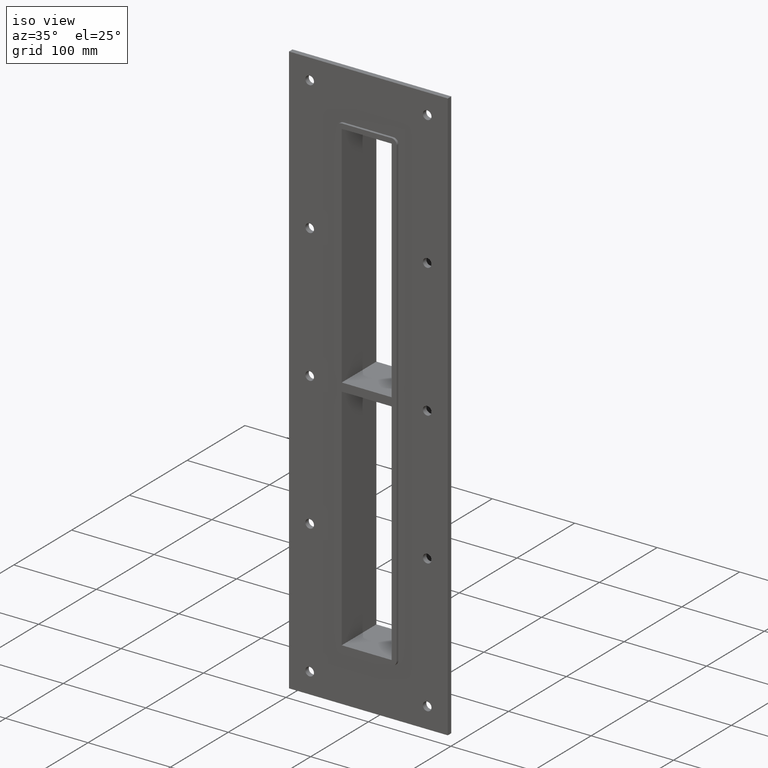
[diagram: clean part render]
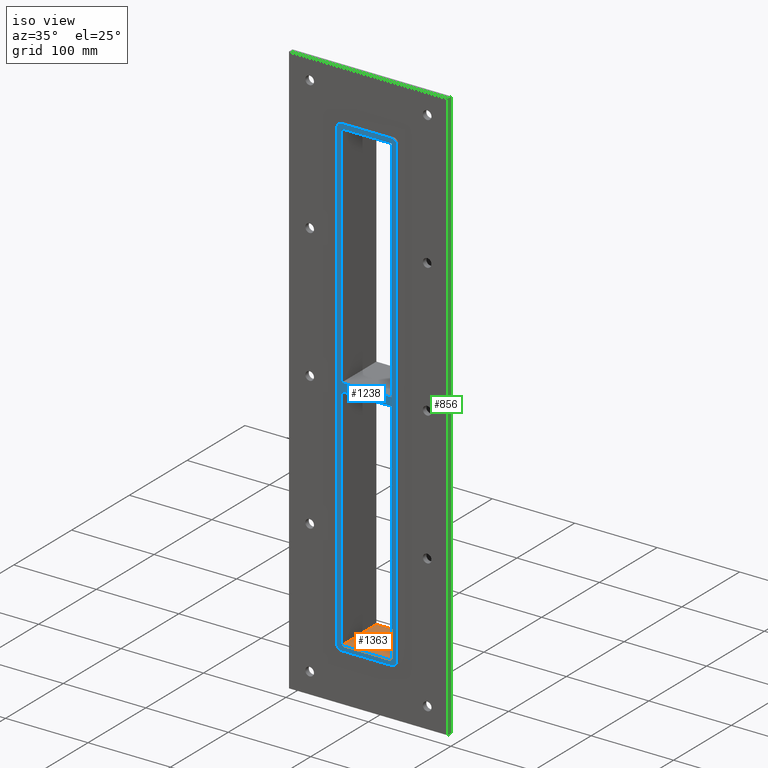
[diagram: same view with three faces highlighted in distinct colors, each labeled with its STEP entity id]
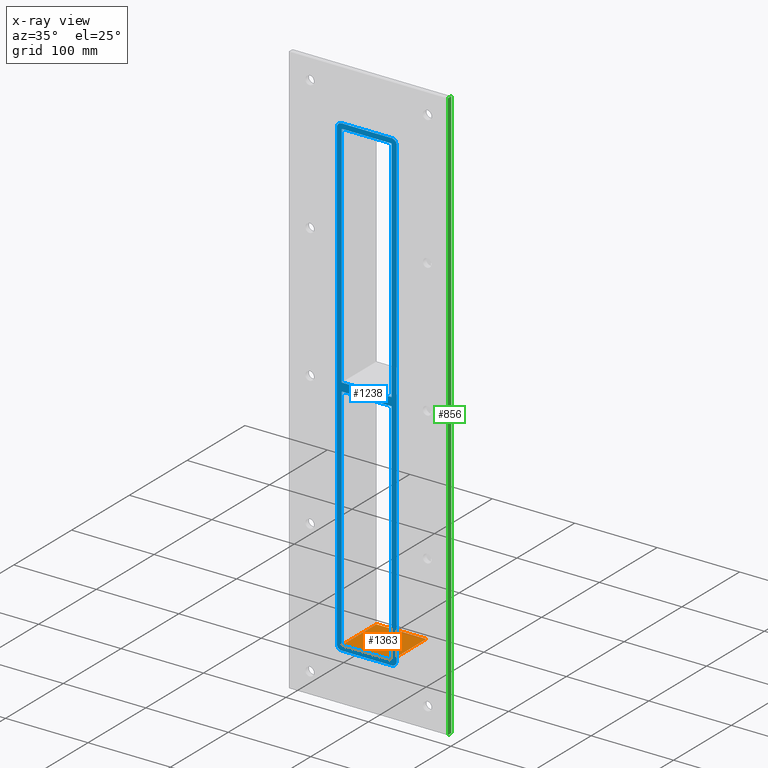
[diagram: x-ray of the same camera — body ghosted, the three highlighted faces saturated]
A machine part, iso view with three faces highlighted in distinct colors.
The next image is the same camera in x-ray (body ghosted, the three faces saturated) — at least one of them is partly hidden behind the body in this view.
Their STEP definitions:

[orange] entity #1363 — the highlighted planar face has unit normal (0, 0, -1).
#465=CARTESIAN_POINT('',(30.249999999999986,57.0,-283.0));
#466=VERTEX_POINT('',#465);
#473=CARTESIAN_POINT('',(30.249999999999986,-3.0,-283.0));
#474=VERTEX_POINT('',#473);
#475=CARTESIAN_POINT('',(30.249999999999986,56.999999999999993,-283.0));
#476=DIRECTION('',(0.0,-1.0,0.0));
#477=VECTOR('',#476,59.999999999999993);
#478=LINE('',#475,#477);
#479=EDGE_CURVE('',#466,#474,#478,.T.);
#875=CARTESIAN_POINT('',(-30.249999999999986,-3.0,-283.0));
#876=VERTEX_POINT('',#875);
#883=CARTESIAN_POINT('',(-30.249999999999986,57.0,-283.0));
#884=VERTEX_POINT('',#883);
#885=CARTESIAN_POINT('',(-30.249999999999986,-3.0,-283.0));
#886=DIRECTION('',(0.0,1.0,0.0));
#887=VECTOR('',#886,60.0);
#888=LINE('',#885,#887);
#889=EDGE_CURVE('',#876,#884,#888,.T.);
#1229=CARTESIAN_POINT('',(30.249999999999986,-3.0,-283.0));
#1230=DIRECTION('',(-1.0,0.0,0.0));
#1231=VECTOR('',#1230,60.499999999999972);
#1232=LINE('',#1229,#1231);
#1233=EDGE_CURVE('',#474,#876,#1232,.T.);
#1347=CARTESIAN_POINT('',(30.249999999999986,0.0,-283.0));
#1348=DIRECTION('',(0.0,0.0,-1.0));
#1349=DIRECTION('',(-1.0,0.0,0.0));
#1350=AXIS2_PLACEMENT_3D('',#1347,#1348,#1349);
#1351=PLANE('',#1350);
#1352=ORIENTED_EDGE('',*,*,#889,.F.);
#1353=ORIENTED_EDGE('',*,*,#1233,.F.);
#1354=ORIENTED_EDGE('',*,*,#479,.F.);
#1355=CARTESIAN_POINT('',(-30.249999999999986,57.0,-283.0));
#1356=DIRECTION('',(1.0,0.0,0.0));
#1357=VECTOR('',#1356,60.499999999999972);
#1358=LINE('',#1355,#1357);
#1359=EDGE_CURVE('',#884,#466,#1358,.T.);
#1360=ORIENTED_EDGE('',*,*,#1359,.F.);
#1361=EDGE_LOOP('',(#1352,#1353,#1354,#1360));
#1362=FACE_OUTER_BOUND('',#1361,.T.);
#1363=ADVANCED_FACE('',(#1362),#1351,.F.);

[blue] entity #1238 — the highlighted planar face has unit normal (0, 1, 0).
#353=CARTESIAN_POINT('',(30.249999999996362,-3.0,-5.000000000010795));
#354=VERTEX_POINT('',#353);
#355=CARTESIAN_POINT('',(-30.249999999997087,-3.0,-5.000000000011369));
#356=VERTEX_POINT('',#355);
#357=CARTESIAN_POINT('',(30.249999999996362,-3.0,-5.000000000010795));
#358=DIRECTION('',(-1.0,0.0,0.0));
#359=VECTOR('',#358,60.499999999993449);
#360=LINE('',#357,#359);
#361=EDGE_CURVE('',#354,#356,#360,.T.);
#393=CARTESIAN_POINT('',(-30.24999999999709,-3.0,5.0));
#394=VERTEX_POINT('',#393);
#395=CARTESIAN_POINT('',(30.249999999999019,-3.0,5.0));
#396=VERTEX_POINT('',#395);
#397=CARTESIAN_POINT('',(-30.24999999999709,-3.0,5.0));
#398=DIRECTION('',(1.0,0.0,0.0));
#399=VECTOR('',#398,60.499999999996106);
#400=LINE('',#397,#399);
#401=EDGE_CURVE('',#394,#396,#400,.T.);
#442=CARTESIAN_POINT('',(-30.249999999999986,-3.0,283.0));
#443=VERTEX_POINT('',#442);
#450=CARTESIAN_POINT('',(-30.249999999999986,-3.0,5.0));
#451=DIRECTION('',(0.0,0.0,1.0));
#452=VECTOR('',#451,277.99999999999994);
#453=LINE('',#450,#452);
#454=EDGE_CURVE('',#394,#443,#453,.T.);
#473=CARTESIAN_POINT('',(30.249999999999986,-3.0,-283.0));
#474=VERTEX_POINT('',#473);
#481=CARTESIAN_POINT('',(30.249999999999986,-3.0,-5.0000000000108));
#482=DIRECTION('',(0.0,0.0,-1.0));
#483=VECTOR('',#482,277.9999999999892);
#484=LINE('',#481,#483);
#485=EDGE_CURVE('',#354,#474,#484,.T.);
#496=CARTESIAN_POINT('',(30.249999999999986,-3.0,283.0));
#497=VERTEX_POINT('',#496);
#498=CARTESIAN_POINT('',(30.249999999999986,-3.0,283.0));
#499=DIRECTION('',(0.0,0.0,-1.0));
#500=VECTOR('',#499,278.0);
#501=LINE('',#498,#500);
#502=EDGE_CURVE('',#497,#396,#501,.T.);
#875=CARTESIAN_POINT('',(-30.249999999999986,-3.0,-283.0));
#876=VERTEX_POINT('',#875);
#877=CARTESIAN_POINT('',(-30.249999999999986,-3.0,-283.0));
#878=DIRECTION('',(0.0,0.0,1.0));
#879=VECTOR('',#878,277.99999999998863);
#880=LINE('',#877,#879);
#881=EDGE_CURVE('',#876,#356,#880,.T.);
#906=CARTESIAN_POINT('',(36.25,-3.0,-283.0));
#907=VERTEX_POINT('',#906);
#914=CARTESIAN_POINT('',(30.250000000000004,-3.0,-289.0));
#915=VERTEX_POINT('',#914);
#916=CARTESIAN_POINT('',(30.250000000000004,-3.0,-283.0));
#917=DIRECTION('',(0.0,1.0,0.0));
#918=DIRECTION('',(0.707106781186546,0.0,-0.707106781186549));
#919=AXIS2_PLACEMENT_3D('',#916,#917,#918);
#920=CIRCLE('',#919,6.000000000000001);
#921=EDGE_CURVE('',#907,#915,#920,.T.);
#971=CARTESIAN_POINT('',(-30.250000000000004,-3.0,-289.0));
#972=VERTEX_POINT('',#971);
#973=CARTESIAN_POINT('',(-30.25,-3.0,-289.0));
#974=DIRECTION('',(1.0,0.0,0.0));
#975=VECTOR('',#974,60.5);
#976=LINE('',#973,#975);
#977=EDGE_CURVE('',#972,#915,#976,.T.);
#1018=CARTESIAN_POINT('',(36.25,-3.0,283.0));
#1019=VERTEX_POINT('',#1018);
#1026=CARTESIAN_POINT('',(36.25,-3.0,-283.00000000000006));
#1027=DIRECTION('',(0.0,0.0,1.0));
#1028=VECTOR('',#1027,566.0);
#1029=LINE('',#1026,#1028);
#1030=EDGE_CURVE('',#907,#1019,#1029,.T.);
#1043=CARTESIAN_POINT('',(-36.25,-3.0,-283.00000000000006));
#1044=VERTEX_POINT('',#1043);
#1045=CARTESIAN_POINT('',(-30.250000000000004,-3.0,-283.00000000000006));
#1046=DIRECTION('',(0.0,1.0,0.0));
#1047=DIRECTION('',(-0.707106781186551,0.0,-0.707106781186544));
#1048=AXIS2_PLACEMENT_3D('',#1045,#1046,#1047);
#1049=CIRCLE('',#1048,6.0);
#1050=EDGE_CURVE('',#972,#1044,#1049,.T.);
#1092=CARTESIAN_POINT('',(30.250000000000004,-3.0,289.0));
#1093=VERTEX_POINT('',#1092);
#1100=CARTESIAN_POINT('',(30.250000000000004,-3.0,283.0));
#1101=DIRECTION('',(0.0,1.0,0.0));
#1102=DIRECTION('',(0.707106781186546,0.0,0.707106781186549));
#1103=AXIS2_PLACEMENT_3D('',#1100,#1101,#1102);
#1104=CIRCLE('',#1103,6.000000000000001);
#1105=EDGE_CURVE('',#1093,#1019,#1104,.T.);
#1118=CARTESIAN_POINT('',(-36.25,-3.0,283.0));
#1119=VERTEX_POINT('',#1118);
#1120=CARTESIAN_POINT('',(-36.25,-3.0,283.0));
#1121=DIRECTION('',(0.0,0.0,-1.0));
#1122=VECTOR('',#1121,566.0);
#1123=LINE('',#1120,#1122);
#1124=EDGE_CURVE('',#1119,#1044,#1123,.T.);
#1165=CARTESIAN_POINT('',(-30.250000000000004,-3.0,289.0));
#1166=VERTEX_POINT('',#1165);
#1173=CARTESIAN_POINT('',(30.25,-3.0,289.0));
#1174=DIRECTION('',(-1.0,0.0,0.0));
#1175=VECTOR('',#1174,60.5);
#1176=LINE('',#1173,#1175);
#1177=EDGE_CURVE('',#1093,#1166,#1176,.T.);
#1190=CARTESIAN_POINT('',(-30.250000000000004,-3.0,283.0));
#1191=DIRECTION('',(0.0,1.0,0.0));
#1192=DIRECTION('',(-0.707106781186546,0.0,0.707106781186549));
#1193=AXIS2_PLACEMENT_3D('',#1190,#1191,#1192);
#1194=CIRCLE('',#1193,6.000000000000001);
#1195=EDGE_CURVE('',#1119,#1166,#1194,.T.);
#1201=CARTESIAN_POINT('',(0.0,-3.0,-1.966144E-014));
#1202=DIRECTION('',(0.0,1.0,0.0));
#1203=DIRECTION('',(0.0,0.0,1.0));
#1204=AXIS2_PLACEMENT_3D('',#1201,#1202,#1203);
#1205=PLANE('',#1204);
#1206=ORIENTED_EDGE('',*,*,#1050,.F.);
#1207=ORIENTED_EDGE('',*,*,#977,.T.);
#1208=ORIENTED_EDGE('',*,*,#921,.F.);
#1209=ORIENTED_EDGE('',*,*,#1030,.T.);
#1210=ORIENTED_EDGE('',*,*,#1105,.F.);
#1211=ORIENTED_EDGE('',*,*,#1177,.T.);
#1212=ORIENTED_EDGE('',*,*,#1195,.F.);
#1213=ORIENTED_EDGE('',*,*,#1124,.T.);
#1214=EDGE_LOOP('',(#1206,#1207,#1208,#1209,#1210,#1211,#1212,#1213));
#1215=FACE_OUTER_BOUND('',#1214,.T.);
#1216=ORIENTED_EDGE('',*,*,#454,.T.);
#1217=CARTESIAN_POINT('',(-30.249999999999986,-3.0,283.0));
#1218=DIRECTION('',(1.0,0.0,0.0));
#1219=VECTOR('',#1218,60.499999999999972);
#1220=LINE('',#1217,#1219);
#1221=EDGE_CURVE('',#443,#497,#1220,.T.);
#1222=ORIENTED_EDGE('',*,*,#1221,.T.);
#1223=ORIENTED_EDGE('',*,*,#502,.T.);
#1224=ORIENTED_EDGE('',*,*,#401,.F.);
#1225=EDGE_LOOP('',(#1216,#1222,#1223,#1224));
#1226=FACE_BOUND('',#1225,.T.);
#1227=ORIENTED_EDGE('',*,*,#361,.F.);
#1228=ORIENTED_EDGE('',*,*,#485,.T.);
#1229=CARTESIAN_POINT('',(30.249999999999986,-3.0,-283.0));
#1230=DIRECTION('',(-1.0,0.0,0.0));
#1231=VECTOR('',#1230,60.499999999999972);
#1232=LINE('',#1229,#1231);
#1233=EDGE_CURVE('',#474,#876,#1232,.T.);
#1234=ORIENTED_EDGE('',*,*,#1233,.T.);
#1235=ORIENTED_EDGE('',*,*,#881,.T.);
#1236=EDGE_LOOP('',(#1227,#1228,#1234,#1235));
#1237=FACE_BOUND('',#1236,.T.);
#1238=ADVANCED_FACE('',(#1215,#1226,#1237),#1205,.F.);

[green] entity #856 — the highlighted planar face has unit normal (1, 0, 0).
#528=CARTESIAN_POINT('',(96.25,6.000000000000001,349.0));
#529=VERTEX_POINT('',#528);
#536=CARTESIAN_POINT('',(96.25,6.000000000000001,-348.99999999999983));
#537=VERTEX_POINT('',#536);
#538=CARTESIAN_POINT('',(96.249999999999986,6.000000000000001,349.0));
#539=DIRECTION('',(0.0,0.0,-1.0));
#540=VECTOR('',#539,697.99999999999977);
#541=LINE('',#538,#540);
#542=EDGE_CURVE('',#529,#537,#541,.T.);
#668=CARTESIAN_POINT('',(96.249999999999986,0.0,349.0));
#669=VERTEX_POINT('',#668);
#684=CARTESIAN_POINT('',(96.249999999999986,0.0,-348.99999999999989));
#685=VERTEX_POINT('',#684);
#692=CARTESIAN_POINT('',(96.249999999999986,0.0,349.0));
#693=DIRECTION('',(0.0,0.0,-1.0));
#694=VECTOR('',#693,697.99999999999977);
#695=LINE('',#692,#694);
#696=EDGE_CURVE('',#669,#685,#695,.T.);
#831=CARTESIAN_POINT('',(96.249999999999986,0.0,-348.99999999999989));
#832=DIRECTION('',(0.0,1.0,0.0));
#833=VECTOR('',#832,6.000000000000001);
#834=LINE('',#831,#833);
#835=EDGE_CURVE('',#685,#537,#834,.T.);
#840=CARTESIAN_POINT('',(96.249999999999986,0.0,349.0));
#841=DIRECTION('',(1.0,0.0,0.0));
#842=DIRECTION('',(0.0,0.0,-1.0));
#843=AXIS2_PLACEMENT_3D('',#840,#841,#842);
#844=PLANE('',#843);
#845=ORIENTED_EDGE('',*,*,#696,.T.);
#846=ORIENTED_EDGE('',*,*,#835,.T.);
#847=ORIENTED_EDGE('',*,*,#542,.F.);
#848=CARTESIAN_POINT('',(96.249999999999986,0.0,349.0));
#849=DIRECTION('',(0.0,1.0,0.0));
#850=VECTOR('',#849,6.000000000000001);
#851=LINE('',#848,#850);
#852=EDGE_CURVE('',#669,#529,#851,.T.);
#853=ORIENTED_EDGE('',*,*,#852,.F.);
#854=EDGE_LOOP('',(#845,#846,#847,#853));
#855=FACE_OUTER_BOUND('',#854,.T.);
#856=ADVANCED_FACE('',(#855),#844,.T.);